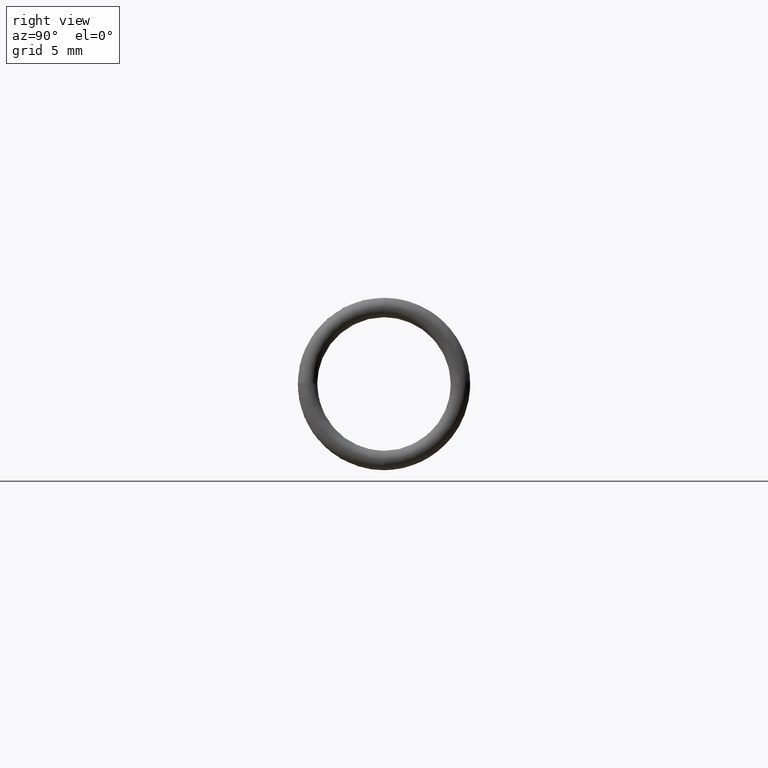
[diagram: clean part render]
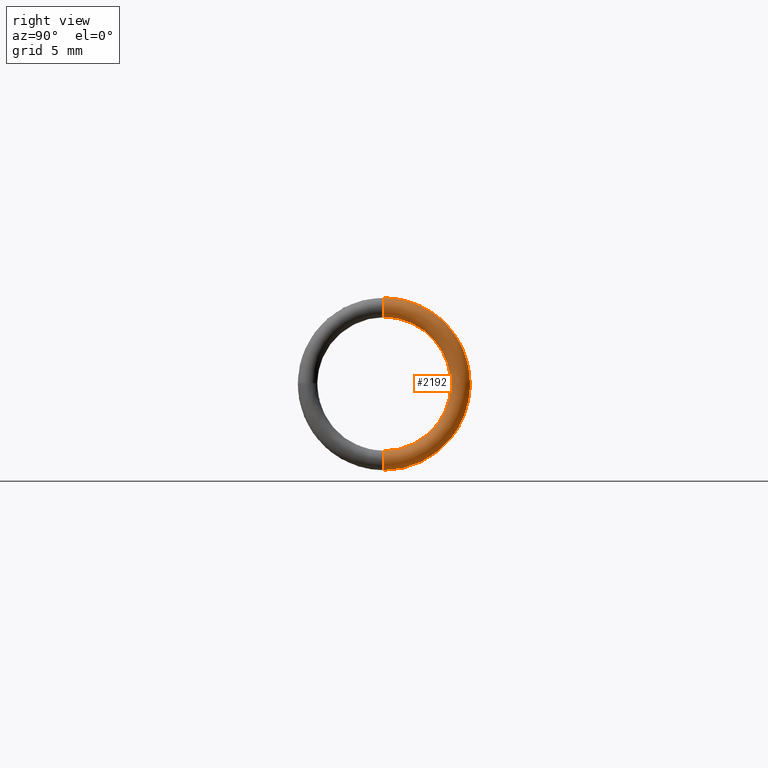
[diagram: same view with one face highlighted and labeled with its STEP entity id]
A machine part, right view. The second image highlights one B-rep face of the part: STEP entity #2192.
In plain terms, the highlighted face is a freeform B-spline surface patch.
Its self-contained STEP definition (entity closure, byte-faithful):
#2192=ADVANCED_FACE('',(#3177),#3176,.T.);
#3176=( BOUNDED_SURFACE() B_SPLINE_SURFACE( 2,2,((#6778,#6779,#6780,#6781,#6782,#6783,#6784),(#6785,#6786,#6787,#6788,#6789,#6790,#6791),(#6792,#6793,#6794,#6795,#6796,#6797,#6798),(#6799,#6800,#6801,#6802,#6803,#6804,#6805),(#6806,#6807,#6808,#6809,#6810,#6811,#6812)), .UNSPECIFIED.,.F.,.F.,.F.) B_SPLINE_SURFACE_WITH_KNOTS((3,2,3),(3,2,2,3),(-3.14159265359E+00,-1.57079632679E+00,-4.44089209850E-16),(0.00000000000E+00,1.57079632679E+00,3.14159265359E+00,3.14672351383E+00), .UNSPECIFIED. ) GEOMETRIC_REPRESENTATION_ITEM() RATIONAL_B_SPLINE_SURFACE(((1.00000000000E+00,7.07106781187E-01,1.00000000000E+00,7.07106781187E-01,1.00000000000E+00,9.99043291516E-01,9.98092833031E-01),(7.07106781187E-01,5.00000000000E-01,7.07106781187E-01,5.00000000000E-01,7.07106781187E-01,7.06430286130E-01,7.05758210490E-01),(1.00000000000E+00,7.07106781187E-01,1.00000000000E+00,7.07106781187E-01,1.00000000000E+00,9.99043291516E-01,9.98092833031E-01),(7.07106781187E-01,5.00000000000E-01,7.07106781187E-01,5.00000000000E-01,7.07106781187E-01,7.06430286130E-01,7.05758210490E-01),(1.00000000000E+00,7.07106781187E-01,1.00000000000E+00,7.07106781187E-01,1.00000000000E+00,9.99043291516E-01,9.98092833031E-01))) REPRESENTATION_ITEM('') SURFACE() );
#3177=FACE_OUTER_BOUND('',#6813,.T.);
#6778=CARTESIAN_POINT('',(2.20081846855E-15,5.74194050076E-10,-3.10000081270E+00));
#6779=CARTESIAN_POINT('',(1.43599804576E-15,3.10000040692E+00,-3.10000081270E+00));
#6780=CARTESIAN_POINT('',(-8.58462779783E-16,3.10000040692E+00,-4.06350059124E-07));
#6781=CARTESIAN_POINT('',(-3.15292360533E-15,3.10000040692E+00,3.10000000000E+00));
#6782=CARTESIAN_POINT('',(-2.38810318254E-15,5.74193290820E-10,3.10000000000E+00));
#6783=CARTESIAN_POINT('',(-2.38633498624E-15,-7.16692267021E-03,3.10000000000E+00));
#6784=CARTESIAN_POINT('',(-2.38454228150E-15,-1.43337693016E-02,3.09996686161E+00));
#6785=CARTESIAN_POINT('',(4.50000000001E-01,5.74194161098E-10,-3.10000081270E+00));
#6786=CARTESIAN_POINT('',(4.50000000001E-01,3.10000040692E+00,-3.10000081270E+00));
#6787=CARTESIAN_POINT('',(4.50000000001E-01,3.10000040692E+00,-4.06350058791E-07));
#6788=CARTESIAN_POINT('',(4.50000000001E-01,3.10000040692E+00,3.10000000000E+00));
#6789=CARTESIAN_POINT('',(4.50000000001E-01,5.74193401842E-10,3.10000000000E+00));
#6790=CARTESIAN_POINT('',(4.50000000001E-01,-7.16692267021E-03,3.10000000000E+00));
#6791=CARTESIAN_POINT('',(4.50000000001E-01,-1.43337693016E-02,3.09996686161E+00));
#6792=CARTESIAN_POINT('',(4.50000000001E-01,5.74194216206E-10,-3.55000081270E+00));
#6793=CARTESIAN_POINT('',(4.50000000001E-01,3.55000040693E+00,-3.55000081270E+00));
#6794=CARTESIAN_POINT('',(4.50000000001E-01,3.55000040693E+00,-4.06350058736E-07));
#6795=CARTESIAN_POINT('',(4.50000000001E-01,3.55000040693E+00,3.55000000000E+00));
#6796=CARTESIAN_POINT('',(4.50000000001E-01,5.74193346735E-10,3.55000000000E+00));
#6797=CARTESIAN_POINT('',(4.50000000001E-01,-8.20728235964E-03,3.55000000000E+00));
#6798=CARTESIAN_POINT('',(4.50000000001E-01,-1.64144775592E-02,3.54996205120E+00));
#6799=CARTESIAN_POINT('',(4.50000000001E-01,5.74194271313E-10,-4.00000081270E+00));
#6800=CARTESIAN_POINT('',(4.50000000001E-01,4.00000040693E+00,-4.00000081270E+00));
#6801=CARTESIAN_POINT('',(4.50000000001E-01,4.00000040693E+00,-4.06350058681E-07));
#6802=CARTESIAN_POINT('',(4.50000000001E-01,4.00000040693E+00,4.00000000000E+00));
#6803=CARTESIAN_POINT('',(4.50000000001E-01,5.74193291628E-10,4.00000000000E+00));
#6804=CARTESIAN_POINT('',(4.50000000001E-01,-9.24764204907E-03,4.00000000000E+00));
#6805=CARTESIAN_POINT('',(4.50000000001E-01,-1.84951858169E-02,3.99995724079E+00));
#6806=CARTESIAN_POINT('',(2.81184488337E-15,5.74194160291E-10,-4.00000081270E+00));
#6807=CARTESIAN_POINT('',(1.82497985081E-15,4.00000040693E+00,-4.00000081270E+00));
#6808=CARTESIAN_POINT('',(-1.13561467547E-15,4.00000040693E+00,-4.06350059014E-07));
#6809=CARTESIAN_POINT('',(-4.09620920176E-15,4.00000040693E+00,4.00000000000E+00));
#6810=CARTESIAN_POINT('',(-3.10934416921E-15,5.74193180606E-10,4.00000000000E+00));
#6811=CARTESIAN_POINT('',(-3.10706262565E-15,-9.24764204907E-03,4.00000000000E+00));
#6812=CARTESIAN_POINT('',(-3.10474945832E-15,-1.84951858169E-02,3.99995724079E+00));
#6813=EDGE_LOOP('',(#7292,#7293,#7294,#7295));
#7292=ORIENTED_EDGE('',*,*,#7313,.F.);
#7293=ORIENTED_EDGE('',*,*,#7510,.F.);
#7294=ORIENTED_EDGE('',*,*,#7460,.T.);
#7295=ORIENTED_EDGE('',*,*,#7511,.T.);
#7313=EDGE_CURVE('',#7529,#7528,#7536,.T.);
#7460=EDGE_CURVE('',#8516,#8517,#8518,.T.);
#7510=EDGE_CURVE('',#8516,#7529,#8818,.T.);
#7511=EDGE_CURVE('',#8517,#7528,#8824,.T.);
#7528=VERTEX_POINT('',#8852);
#7529=VERTEX_POINT('',#8853);
#7536=CIRCLE('',#8861,4.50000000000E-01);
#8516=VERTEX_POINT('',#9832);
#8517=VERTEX_POINT('',#9833);
#8518=(BOUNDED_CURVE() B_SPLINE_CURVE(3,(#9834,#9835,#9836,#9837,#9838,#9839,#9840,#9841,#9842,#9843),.UNSPECIFIED.,.F.,.F.) B_SPLINE_CURVE_WITH_KNOTS((4,2,2,2,4),(0.00000000000E+00,1.25000000000E-01,2.50000000000E-01,3.75000000000E-01,5.00000000000E-01),.UNSPECIFIED.) CURVE() GEOMETRIC_REPRESENTATION_ITEM() RATIONAL_B_SPLINE_CURVE((1.00000000000E+00,1.00000000000E+00,1.00000000000E+00,1.00000000000E+00,1.00000000000E+00,1.00000000000E+00,1.00000000000E+00,1.00000000000E+00,1.00000000000E+00,1.00000000000E+00)) REPRESENTATION_ITEM('') );
#8818=(BOUNDED_CURVE() B_SPLINE_CURVE(2,(#10142,#10143,#10144,#10145,#10146),.UNSPECIFIED.,.F.,.F.) B_SPLINE_CURVE_WITH_KNOTS((3,2,3),(0.00000000000E+00,1.57079632679E+00,3.14159265359E+00),.UNSPECIFIED.) CURVE() GEOMETRIC_REPRESENTATION_ITEM() RATIONAL_B_SPLINE_CURVE((1.00000000000E+00,7.07106781187E-01,1.00000000000E+00,7.07106781187E-01,1.00000000000E+00)) REPRESENTATION_ITEM('') );
#8824=(BOUNDED_CURVE() B_SPLINE_CURVE(3,(#10147,#10148,#10149,#10150,#10151,#10152,#10153,#10154,#10155),.UNSPECIFIED.,.F.,.F.) B_SPLINE_CURVE_WITH_KNOTS((4,1,1,1,1,1,4),(0.00000000000E+00,6.73863659564E-01,1.12253936648E+00,1.57079632689E+00,2.01905328729E+00,2.46772899421E+00,3.14159265378E+00),.UNSPECIFIED.) CURVE() GEOMETRIC_REPRESENTATION_ITEM() RATIONAL_B_SPLINE_CURVE((1.00000000000E+00,1.00000000000E+00,1.00000000000E+00,1.00000000000E+00,1.00000000000E+00,1.00000000000E+00,1.00000000000E+00,1.00000000000E+00,1.00000000000E+00)) REPRESENTATION_ITEM('') );
#8852=CARTESIAN_POINT('',(5.51072859220E-17,0.00000000000E+00,4.00000000000E+00));
#8853=CARTESIAN_POINT('',(3.70074341542E-17,0.00000000000E+00,3.10000000000E+00));
#8858=CARTESIAN_POINT('',(0.00000000000E+00,0.00000000000E+00,3.55000000000E+00));
#8859=DIRECTION('',(0.00000000000E+00,-1.00000000000E+00,0.00000000000E+00));
#8860=DIRECTION('',(-0.00000000000E+00,-0.00000000000E+00,1.00000000000E+00));
#8861=AXIS2_PLACEMENT_3D('',#8858,#8859,#8860);
#9832=CARTESIAN_POINT('',(2.75545529808E-17,-1.89820253868E-16,-3.10000000000E+00));
#9833=CARTESIAN_POINT('',(0.00000000000E+00,0.00000000000E+00,-4.00000000000E+00));
#9834=CARTESIAN_POINT('',(2.77555756156E-17,0.00000000000E+00,-3.10000000000E+00));
#9835=CARTESIAN_POINT('',(1.17809724510E-01,0.00000000000E+00,-3.10000000000E+00));
#9836=CARTESIAN_POINT('',(2.34893996443E-01,-0.00000000000E+00,-3.14849789338E+00));
#9837=CARTESIAN_POINT('',(4.01502106624E-01,0.00000000000E+00,-3.31510600356E+00));
#9838=CARTESIAN_POINT('',(4.50000000000E-01,-0.00000000000E+00,-3.43219027549E+00));
#9839=CARTESIAN_POINT('',(4.50000000000E-01,0.00000000000E+00,-3.66780972451E+00));
#9840=CARTESIAN_POINT('',(4.01502106624E-01,-0.00000000000E+00,-3.78489399644E+00));
#9841=CARTESIAN_POINT('',(2.34893996443E-01,0.00000000000E+00,-3.95150210662E+00));
#9842=CARTESIAN_POINT('',(1.17809724510E-01,-0.00000000000E+00,-4.00000000000E+00));
#9843=CARTESIAN_POINT('',(0.00000000000E+00,0.00000000000E+00,-4.00000000000E+00));
#10142=CARTESIAN_POINT('',(2.20081846855E-15,5.74194050076E-10,-3.10000081270E+00));
#10143=CARTESIAN_POINT('',(1.43599804576E-15,3.10000040692E+00,-3.10000081270E+00));
#10144=CARTESIAN_POINT('',(-8.58462779783E-16,3.10000040692E+00,-4.06350059124E-07));
#10145=CARTESIAN_POINT('',(-3.15292360533E-15,3.10000040692E+00,3.10000000000E+00));
#10146=CARTESIAN_POINT('',(-2.38810318254E-15,5.74193290820E-10,3.10000000000E+00));
#10147=CARTESIAN_POINT('',(2.63192554071E-15,5.74194160291E-10,-4.00000081270E+00));
#10148=CARTESIAN_POINT('',(2.41586871980E-15,8.91366215914E-01,-4.00521286641E+00));
#10149=CARTESIAN_POINT('',(1.65517106305E-15,2.38775048253E+00,-3.47624423723E+00));
#10150=CARTESIAN_POINT('',(8.01944644480E-17,3.72668058954E+00,-1.79463478799E+00));
#10151=CARTESIAN_POINT('',(-1.34923449537E-15,4.13659651396E+00,-4.06003929865E-07));
#10152=CARTESIAN_POINT('',(-2.57639762955E-15,3.72668058924E+00,1.79463397592E+00));
#10153=CARTESIAN_POINT('',(-3.49070264322E-15,2.38775048195E+00,3.47624342493E+00));
#10154=CARTESIAN_POINT('',(-3.51303572078E-15,8.91366215244E-01,4.00521205386E+00));
#10155=CARTESIAN_POINT('',(-3.28926351170E-15,-9.35747287764E-11,4.00000000000E+00));